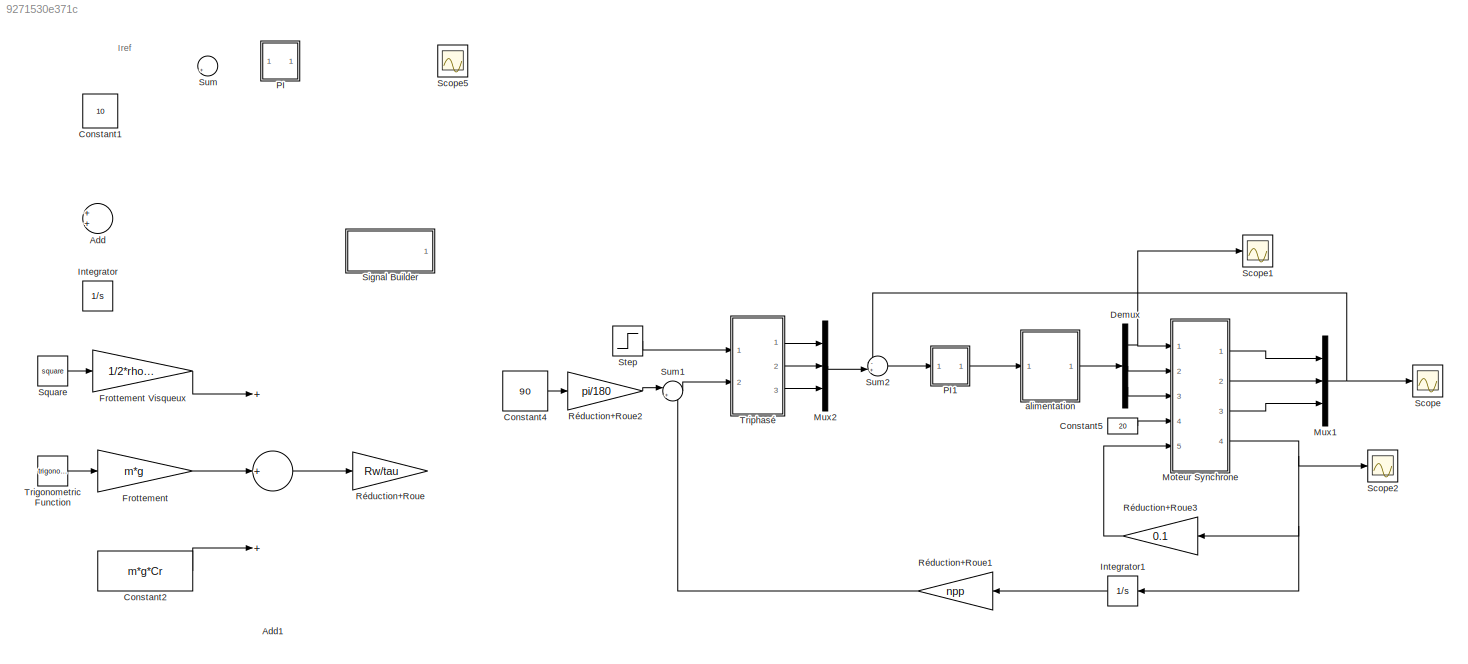
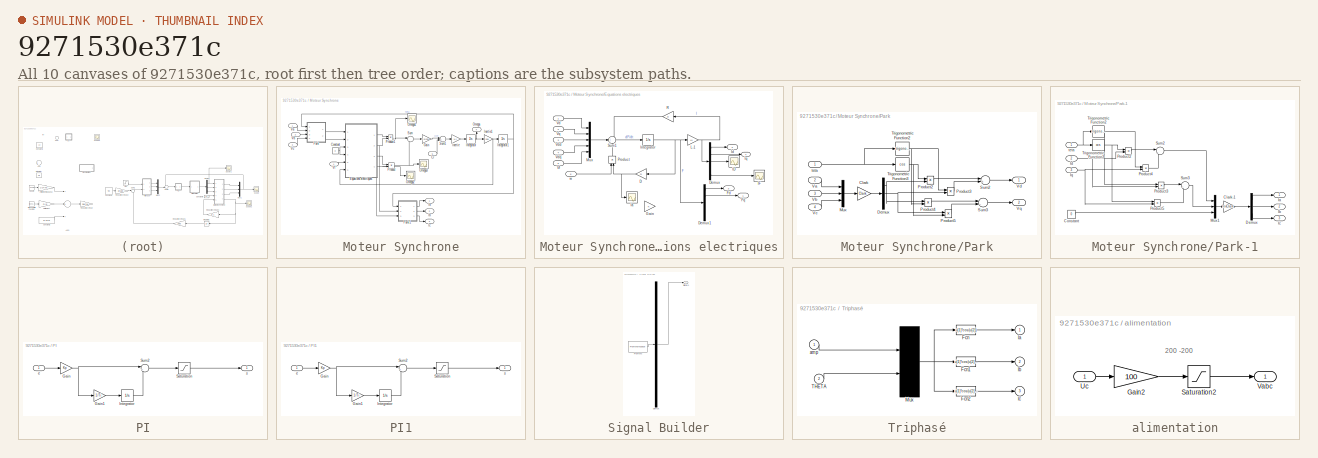
[diagram: thumbnail index - all 10 canvases of the model, root first then tree order]
MODEL slx_9271530e371c
KIND model
CONFIG AbsTol = auto
CONFIG EnableMultiTasking = on
CONFIG FixedStep = auto
CONFIG InitFcn = % Modelisation de la Machine Synchrone\n\n% Constantes\n\nRs = 0.001;\nRdd = 0.01 ;\nRdq = Rdd ;\nRf = 7 ;\nLd = 1.59e-2 ;\nLq = Ld ;\nLf = 7 ;\nLdd = 7e-4 ;\nLdq = Ldd ;\nMaf = 0.259 ;\nMadd = 2.5e-3 ;\nMadq = Madd ;\nMfdd = 6.8e-2 ; \nnpp = 2 ;\nJ = 0.1 ;\n\nw = 2*pi*50 ;\n\nOmega = w/npp ;\n\n\n% Matrices\n\n% V = [Vd Vq 0 0 Vf] ;\n\n% I = [Id Iq Idd Idq If] ;\n\n% F = [Fd Fq Fdd Fdq Ff] ;\n\nL = [ Ld			0		Madd		0			Maf ;\n    ...<+735ch>
CONFIG MaxStep = 1e-3
CONFIG MinStep = auto
CONFIG RelTol = 1e-3
CONFIG SampleTimeConstraint = Unconstrained
CONFIG Solver = ode23t
CONFIG SolverName = ode23t
CONFIG StartTime = 0.0
CONFIG StopTime = 3
BLOCK [Sum] Add
  InputSameDT = off
  OutDataTypeStr = Inherit: Inherit via internal rule
  Ports = [2, 1]
  SaturateOnIntegerOverflow = off
BLOCK [Sum] Add1
  Commented = on
  InputSameDT = off
  Inputs = +++
  OutDataTypeStr = Inherit: Inherit via internal rule
  Ports = [3, 1]
  SaturateOnIntegerOverflow = off
BLOCK [Constant] Constant1
  Value = 10
BLOCK [Constant] Constant2
  Commented = on
  Value = m*g*Cr
BLOCK [Constant] Constant4
  Value = 90
BLOCK [Constant] Constant5
  Value = 20
BLOCK [Demux] Demux
  Outputs = 3
  Ports = [1, 3]
BLOCK [Gain] Frottement 
  Commented = on
  Gain = m*g
  OutDataTypeStr = Inherit: Inherit via internal rule
  ParamDataTypeStr = Inherit: Inherit via internal rule
  SaturateOnIntegerOverflow = off
BLOCK [Gain] Frottement Visqueux
  Commented = on
  Gain = 1/2*rho*Cx*S
  OutDataTypeStr = Inherit: Inherit via internal rule
  ParamDataTypeStr = Inherit: Inherit via internal rule
  SaturateOnIntegerOverflow = off
BLOCK [Integrator] Integrator
  Ports = [1, 1]
BLOCK [Integrator] Integrator1
  Ports = [1, 1]
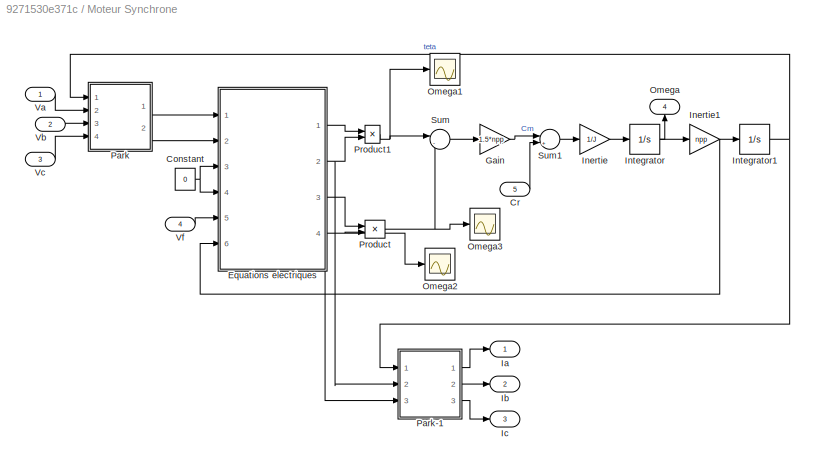
BLOCK [SubSystem] Moteur Synchrone
  Ports = [5, 4]
  RequestExecContextInheritance = off
BLOCK [Constant] Moteur Synchrone/Constant
  Value = 0
BLOCK [Inport] Moteur Synchrone/Cr
  IconDisplay = Port number
  Port = 5
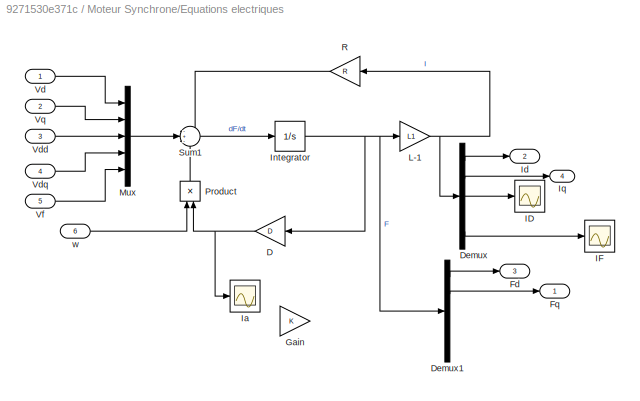
BLOCK [SubSystem] Moteur Synchrone/Equations electriques
  Ports = [6, 4]
  RequestExecContextInheritance = off
BLOCK [Gain] Moteur Synchrone/Equations electriques/D
  Gain = D
  Multiplication = Matrix(K*u)
BLOCK [Demux] Moteur Synchrone/Equations electriques/Demux
  Outputs = 5
  Ports = [1, 5]
BLOCK [Demux] Moteur Synchrone/Equations electriques/Demux1
  Outputs = 5
  Ports = [1, 5]
BLOCK [Outport] Moteur Synchrone/Equations electriques/Fd
  IconDisplay = Port number
  Port = 3
BLOCK [Outport] Moteur Synchrone/Equations electriques/Fq
  IconDisplay = Port number
BLOCK [Gain] Moteur Synchrone/Equations electriques/Gain
  OutDataTypeStr = Inherit: Inherit via internal rule
  ParamDataTypeStr = Inherit: Inherit via internal rule
  SaturateOnIntegerOverflow = off
BLOCK [Scope] Moteur Synchrone/Equations electriques/ID
  Floating = off
  NumInputPorts = 1
  Ports = [1]
  ScopeSpecificationString = C++SS(StrPVP('Location','[6, 45, 1030, 594]'),StrPVP('Open','off'),StrPVP('ZoomMode','xonly'),MxPVP('AxesTitles',54,'struct(''axes1'',''%<SignalLabel>'')'),StrPVP('YMin','-350'),StrPVP('YMax','450'),StrPVP('SaveName','ScopeData11'),StrPVP('DataFormat','StructureWithTime'),StrPVP('LimitDataPoints','off'),StrPVP('BlockParamSampleTime','0'),StrPVP('Decimation','1'),StrPVP('BlockParamSampleInput','off...<+3ch>
BLOCK [Scope] Moteur Synchrone/Equations electriques/IF
  Floating = off
  NumInputPorts = 1
  Ports = [1]
  ScopeSpecificationString = C++SS(StrPVP('Location','[6, 57, 810, 594]'),StrPVP('Open','off'),StrPVP('ZoomMode','xonly'),MxPVP('AxesTitles',54,'struct(''axes1'',''%<SignalLabel>'')'),StrPVP('YMin','-350'),StrPVP('YMax','450'),StrPVP('SaveName','ScopeData12'),StrPVP('DataFormat','StructureWithTime'),StrPVP('LimitDataPoints','off'),StrPVP('BlockParamSampleTime','0'),StrPVP('Decimation','1'),StrPVP('BlockParamSampleInput','off'...<+2ch>
BLOCK [Scope] Moteur Synchrone/Equations electriques/Ia
  Floating = off
  NumInputPorts = 1
  Ports = [1]
  ScopeSpecificationString = C++SS(StrPVP('Location','[6, 56, 1030, 771]'),StrPVP('Open','off'),StrPVP('ZoomMode','xonly'),MxPVP('AxesTitles',54,'struct(''axes1'',''%<SignalLabel>'')'),StrPVP('YMin','-350'),StrPVP('YMax','450'),StrPVP('SaveName','ScopeData10'),StrPVP('DataFormat','StructureWithTime'),StrPVP('LimitDataPoints','off'),StrPVP('BlockParamSampleTime','0'),StrPVP('Decimation','1'),StrPVP('BlockParamSampleInput','off...<+3ch>
BLOCK [Outport] Moteur Synchrone/Equations electriques/Id
  IconDisplay = Port number
  Port = 2
BLOCK [Integrator] Moteur Synchrone/Equations electriques/Integrator
  Ports = [1, 1]
BLOCK [Outport] Moteur Synchrone/Equations electriques/Iq
  IconDisplay = Port number
  Port = 4
BLOCK [Gain] Moteur Synchrone/Equations electriques/L-1
  Gain = L1
  Multiplication = Matrix(K*u)
BLOCK [Mux] Moteur Synchrone/Equations electriques/Mux
  DisplayOption = bar
  Inputs = 5
  Ports = [5, 1]
BLOCK [Product] Moteur Synchrone/Equations electriques/Product
  Ports = [2, 1]
  RndMeth = Floor
BLOCK [Gain] Moteur Synchrone/Equations electriques/R
  Gain = R
  Multiplication = Matrix(K*u)
BLOCK [Sum] Moteur Synchrone/Equations electriques/Sum1
  IconShape = round
  Inputs = -+-
  Ports = [3, 1]
BLOCK [Inport] Moteur Synchrone/Equations electriques/Vd
  IconDisplay = Port number
BLOCK [Inport] Moteur Synchrone/Equations electriques/Vdd
  IconDisplay = Port number
  Port = 3
BLOCK [Inport] Moteur Synchrone/Equations electriques/Vdq
  IconDisplay = Port number
  Port = 4
BLOCK [Inport] Moteur Synchrone/Equations electriques/Vf
  IconDisplay = Port number
  Port = 5
BLOCK [Inport] Moteur Synchrone/Equations electriques/Vq
  IconDisplay = Port number
  Port = 2
BLOCK [Inport] Moteur Synchrone/Equations electriques/w
  IconDisplay = Port number
  Port = 6
BLOCK [Gain] Moteur Synchrone/Gain
  Gain = 1.5*npp
BLOCK [Outport] Moteur Synchrone/Ia
  IconDisplay = Port number
BLOCK [Outport] Moteur Synchrone/Ib
  IconDisplay = Port number
  Port = 2
BLOCK [Outport] Moteur Synchrone/Ic
  IconDisplay = Port number
  Port = 3
BLOCK [Gain] Moteur Synchrone/Inertie
  Gain = 1/J
BLOCK [Gain] Moteur Synchrone/Inertie1
  Gain = npp
BLOCK [Integrator] Moteur Synchrone/Integrator
  Ports = [1, 1]
BLOCK [Integrator] Moteur Synchrone/Integrator1
  Ports = [1, 1]
BLOCK [Outport] Moteur Synchrone/Omega
  IconDisplay = Port number
  Port = 4
BLOCK [Scope] Moteur Synchrone/Omega1
  Floating = off
  NumInputPorts = 1
  Ports = [1]
  ScopeSpecificationString = C++SS(StrPVP('Location','[130, 110, 950, 615]'),StrPVP('Open','off'),StrPVP('ZoomMode','xonly'),MxPVP('AxesTitles',54,'struct(''axes1'',''%<SignalLabel>'')'),StrPVP('YMin','-10'),StrPVP('YMax','170'),StrPVP('SaveName','ScopeData14'),StrPVP('DataFormat','StructureWithTime'),StrPVP('LimitDataPoints','off'),StrPVP('BlockParamSampleTime','0'),StrPVP('Decimation','1'),StrPVP('BlockParamSampleInput','of...<+4ch>
BLOCK [Scope] Moteur Synchrone/Omega2
  Floating = off
  NumInputPorts = 1
  Ports = [1]
  ScopeSpecificationString = C++SS(StrPVP('Location','[130, 110, 950, 615]'),StrPVP('Open','off'),StrPVP('ZoomMode','xonly'),MxPVP('AxesTitles',54,'struct(''axes1'',''%<SignalLabel>'')'),StrPVP('YMin','-10'),StrPVP('YMax','170'),StrPVP('SaveName','ScopeData15'),StrPVP('DataFormat','StructureWithTime'),StrPVP('LimitDataPoints','off'),StrPVP('BlockParamSampleTime','0'),StrPVP('Decimation','1'),StrPVP('BlockParamSampleInput','of...<+4ch>
BLOCK [Scope] Moteur Synchrone/Omega3
  Floating = off
  NumInputPorts = 1
  Ports = [1]
  ScopeSpecificationString = C++SS(StrPVP('Location','[130, 110, 950, 615]'),StrPVP('Open','off'),StrPVP('ZoomMode','xonly'),MxPVP('AxesTitles',54,'struct(''axes1'',''%<SignalLabel>'')'),StrPVP('YMin','-10'),StrPVP('YMax','170'),StrPVP('SaveName','ScopeData13'),StrPVP('DataFormat','StructureWithTime'),StrPVP('LimitDataPoints','off'),StrPVP('BlockParamSampleTime','0'),StrPVP('Decimation','1'),StrPVP('BlockParamSampleInput','of...<+4ch>
BLOCK [SubSystem] Moteur Synchrone/Park
  Ports = [4, 2]
  RequestExecContextInheritance = off
BLOCK [SubSystem] Moteur Synchrone/Park-1
  Ports = [3, 3]
  RequestExecContextInheritance = off
BLOCK [Gain] Moteur Synchrone/Park-1/Clark-1
  Gain = InvClark
  Multiplication = Matrix(K*u)
BLOCK [Constant] Moteur Synchrone/Park-1/Constant
  Value = 0
BLOCK [Demux] Moteur Synchrone/Park-1/Demux
  Outputs = 3
  Ports = [1, 3]
BLOCK [Outport] Moteur Synchrone/Park-1/Ia
  IconDisplay = Port number
BLOCK [Outport] Moteur Synchrone/Park-1/Ib
  IconDisplay = Port number
  Port = 2
BLOCK [Outport] Moteur Synchrone/Park-1/Ic
  IconDisplay = Port number
  Port = 3
BLOCK [Inport] Moteur Synchrone/Park-1/Id
  IconDisplay = Port number
  Port = 2
BLOCK [Inport] Moteur Synchrone/Park-1/Iq
  IconDisplay = Port number
  Port = 3
BLOCK [Mux] Moteur Synchrone/Park-1/Mux1
  DisplayOption = bar
  Inputs = 3
  Ports = [3, 1]
BLOCK [Product] Moteur Synchrone/Park-1/Product2
  Ports = [2, 1]
  RndMeth = Floor
BLOCK [Product] Moteur Synchrone/Park-1/Product3
  Ports = [2, 1]
  RndMeth = Floor
BLOCK [Product] Moteur Synchrone/Park-1/Product4
  Ports = [2, 1]
  RndMeth = Floor
BLOCK [Product] Moteur Synchrone/Park-1/Product5
  Ports = [2, 1]
  RndMeth = Floor
BLOCK [Sum] Moteur Synchrone/Park-1/Sum2
  IconShape = round
  Inputs = |+-
  Ports = [2, 1]
BLOCK [Sum] Moteur Synchrone/Park-1/Sum3
  IconShape = round
  Inputs = |++
  Ports = [2, 1]
BLOCK [Trigonometry] Moteur Synchrone/Park-1/Trigonometric Function2
  Ports = [1, 1]
BLOCK [Trigonometry] Moteur Synchrone/Park-1/Trigonometric Function3
  Operator = cos
  Ports = [1, 1]
BLOCK [Inport] Moteur Synchrone/Park-1/teta
  IconDisplay = Port number
BLOCK [Gain] Moteur Synchrone/Park/Clark
  Gain = Clark
  Multiplication = Matrix(K*u)
BLOCK [Demux] Moteur Synchrone/Park/Demux
  Outputs = 3
  Ports = [1, 3]
BLOCK [Mux] Moteur Synchrone/Park/Mux
  DisplayOption = bar
  Inputs = 3
  Ports = [3, 1]
BLOCK [Product] Moteur Synchrone/Park/Product2
  Ports = [2, 1]
  RndMeth = Floor
BLOCK [Product] Moteur Synchrone/Park/Product3
  Ports = [2, 1]
  RndMeth = Floor
BLOCK [Product] Moteur Synchrone/Park/Product4
  Ports = [2, 1]
  RndMeth = Floor
BLOCK [Product] Moteur Synchrone/Park/Product5
  Ports = [2, 1]
  RndMeth = Floor
BLOCK [Sum] Moteur Synchrone/Park/Sum2
  IconShape = round
  Inputs = |++
  Ports = [2, 1]
BLOCK [Sum] Moteur Synchrone/Park/Sum3
  IconShape = round
  Inputs = |-+
  Ports = [2, 1]
BLOCK [Trigonometry] Moteur Synchrone/Park/Trigonometric Function2
  Ports = [1, 1]
BLOCK [Trigonometry] Moteur Synchrone/Park/Trigonometric Function3
  Operator = cos
  Ports = [1, 1]
BLOCK [Inport] Moteur Synchrone/Park/Va
  IconDisplay = Port number
  Port = 2
BLOCK [Inport] Moteur Synchrone/Park/Vb
  IconDisplay = Port number
  Port = 3
BLOCK [Inport] Moteur Synchrone/Park/Vc
  IconDisplay = Port number
  Port = 4
BLOCK [Outport] Moteur Synchrone/Park/Vd
  IconDisplay = Port number
BLOCK [Outport] Moteur Synchrone/Park/Vq
  IconDisplay = Port number
  Port = 2
BLOCK [Inport] Moteur Synchrone/Park/teta
  IconDisplay = Port number
BLOCK [Product] Moteur Synchrone/Product
  Ports = [2, 1]
  RndMeth = Floor
BLOCK [Product] Moteur Synchrone/Product1
  Ports = [2, 1]
  RndMeth = Floor
BLOCK [Sum] Moteur Synchrone/Sum
  IconShape = round
  Inputs = |-+
  Ports = [2, 1]
BLOCK [Sum] Moteur Synchrone/Sum1
  IconShape = round
  Inputs = |+-
  Ports = [2, 1]
BLOCK [Inport] Moteur Synchrone/Va
  IconDisplay = Port number
BLOCK [Inport] Moteur Synchrone/Vb
  IconDisplay = Port number
  Port = 2
BLOCK [Inport] Moteur Synchrone/Vc
  IconDisplay = Port number
  Port = 3
BLOCK [Inport] Moteur Synchrone/Vf
  IconDisplay = Port number
  Port = 4
BLOCK [Mux] Mux1
  DisplayOption = bar
  Inputs = 3
  Ports = [3, 1]
BLOCK [Mux] Mux2
  DisplayOption = bar
  Inputs = 3
  Ports = [3, 1]
BLOCK [SubSystem] PI
  Ports = [1, 1]
  RequestExecContextInheritance = off
BLOCK [Gain] PI/Gain
  Gain = Kp
BLOCK [Gain] PI/Gain1
  Gain = 1/Ti
BLOCK [Integrator] PI/Integrator
  Ports = [1, 1]
BLOCK [Saturate] PI/Saturation
  InputPortMap = u0
  LowerLimit = -sat
  Ports = [1, 1]
  UpperLimit = sat
BLOCK [Sum] PI/Sum2
  IconShape = round
  Inputs = |++
  Ports = [2, 1]
BLOCK [Inport] PI/e
  IconDisplay = Port number
BLOCK [Outport] PI/s
  IconDisplay = Port number
BLOCK [SubSystem] PI1
  Ports = [1, 1]
  RequestExecContextInheritance = off
BLOCK [Gain] PI1/Gain
  Gain = Kp
BLOCK [Gain] PI1/Gain1
  Gain = 1/Ti
BLOCK [Integrator] PI1/Integrator
  Ports = [1, 1]
BLOCK [Saturate] PI1/Saturation
  InputPortMap = u0
  LowerLimit = -sat
  Ports = [1, 1]
  UpperLimit = sat
BLOCK [Sum] PI1/Sum2
  IconShape = round
  Inputs = |++
  Ports = [2, 1]
BLOCK [Inport] PI1/e
  IconDisplay = Port number
BLOCK [Outport] PI1/s
  IconDisplay = Port number
BLOCK [Gain] Réduction+Roue
  Commented = on
  Gain = Rw/tau
  OutDataTypeStr = Inherit: Inherit via internal rule
  ParamDataTypeStr = Inherit: Inherit via internal rule
  SaturateOnIntegerOverflow = off
BLOCK [Gain] Réduction+Roue1
  Gain = npp
  OutDataTypeStr = Inherit: Inherit via internal rule
  ParamDataTypeStr = Inherit: Inherit via internal rule
  SaturateOnIntegerOverflow = off
BLOCK [Gain] Réduction+Roue2
  Gain = pi/180
  OutDataTypeStr = Inherit: Inherit via internal rule
  ParamDataTypeStr = Inherit: Inherit via internal rule
  SaturateOnIntegerOverflow = off
BLOCK [Gain] Réduction+Roue3
  Gain = 0.1
  OutDataTypeStr = Inherit: Inherit via internal rule
  ParamDataTypeStr = Inherit: Inherit via internal rule
  SaturateOnIntegerOverflow = off
BLOCK [Scope] Scope
  Floating = off
  NumInputPorts = 1
  Ports = [1]
  ScopeSpecificationString = Simulink.scopes.TimeScopeBlockCfg('CurrentConfiguration', extmgr.ConfigurationSet(extmgr.Configuration('Core','General UI',true,'FigureColor',[0.941176470588235 0.941176470588235 0.941176470588235]),extmgr.Configuration('Core','Source UI',true),extmgr.Configuration('Sources','WiredSimulink',true,'DataLoggingVariableName','ScopeData1'),extmgr.Configuration('Visuals','Time Domain',true,'SerializedDi...<+2218ch>
BLOCK [Scope] Scope1
  Floating = off
  NumInputPorts = 1
  Ports = [1]
  ScopeSpecificationString = Simulink.scopes.TimeScopeBlockCfg('CurrentConfiguration', extmgr.ConfigurationSet(extmgr.Configuration('Core','General UI',true,'FigureColor',[0.941176470588235 0.941176470588235 0.941176470588235]),extmgr.Configuration('Core','Source UI',true),extmgr.Configuration('Sources','WiredSimulink',true,'DataLoggingVariableName','ScopeData2'),extmgr.Configuration('Visuals','Time Domain',true,'SerializedDi...<+2298ch>
BLOCK [Scope] Scope2
  Floating = off
  NumInputPorts = 1
  Ports = [1]
  ScopeSpecificationString = Simulink.scopes.TimeScopeBlockCfg('CurrentConfiguration', extmgr.ConfigurationSet(extmgr.Configuration('Core','General UI',true,'FigureColor',[0.941176470588235 0.941176470588235 0.941176470588235]),extmgr.Configuration('Core','Source UI',true),extmgr.Configuration('Sources','WiredSimulink',true,'DataLoggingVariableName','ScopeData3'),extmgr.Configuration('Visuals','Time Domain',true,'SerializedDi...<+2110ch>
BLOCK [Scope] Scope5
  Floating = off
  NumInputPorts = 1
  Ports = [1]
  ScopeSpecificationString = Simulink.scopes.TimeScopeBlockCfg('CurrentConfiguration', extmgr.ConfigurationSet(extmgr.Configuration('Core','General UI',true,'FigureColor',[1 1 1]),extmgr.Configuration('Core','Source UI',true),extmgr.Configuration('Sources','WiredSimulink',true,'DataLoggingVariableName','ScopeData5','DataLoggingSaveFormat','StructureWithTime','DataLoggingDecimation','1','DataLoggingDecimateData',true),extmgr.C...<+1814ch>
BLOCK [SubSystem] Signal Builder
  ClipboardFcn = sigbuilder_block('clipboard');
  CloseFcn = sigbuilder_block('close');
  ContinueFcn = sigbuilder_block('continue');
  CopyFcn = sigbuilder_block('copy');
  DeleteFcn = sigbuilder_block('delete');
  LoadFcn = sigbuilder_block('load');
  MaskHideContents = on
  ModelCloseFcn = sigbuilder_block('modelClose');
  NameChangeFcn = sigbuilder_block('namechange');
  OpenFcn = sigbuilder_block('open',[406 167 550 400 ]);
  PauseFcn = sigbuilder_block('pause');
  Ports = [0, 1]
  PreSaveFcn = sigbuilder_block('preSave');
  RequestExecContextInheritance = off
  StartFcn = sigbuilder_block('start');
  StopFcn = sigbuilder_block('stop');
  Tag = STV Subsys
BLOCK [Demux] Signal Builder/Demux
  Outputs = 1
  Ports = [1, 1]
  Tag = STV Demux
BLOCK [FromWorkspace] Signal Builder/FromWs
  SampleTime = 0
  Tag = STV FromWs
  VariableName = tuvar
  ZeroCross = on
BLOCK [Outport] Signal Builder/Signal 1
  IconDisplay = Port number
  Tag = STV Outport
BLOCK [Math] Square
  Commented = on
  Operator = square
  Ports = [1, 1]
  SignedPower = off
BLOCK [Step] Step
  Before = 10
  SampleTime = 0
  Time = 1.2
BLOCK [Sum] Sum
  IconShape = round
  InputSameDT = off
  Inputs = |+-
  OutDataTypeStr = Inherit: Inherit via internal rule
  Ports = [2, 1]
BLOCK [Sum] Sum1
  IconShape = round
  InputSameDT = off
  Inputs = |++
  OutDataTypeStr = Inherit: Inherit via internal rule
  Ports = [2, 1]
BLOCK [Sum] Sum2
  IconShape = round
  InputSameDT = off
  Inputs = -+|
  OutDataTypeStr = Inherit: Inherit via internal rule
  Ports = [2, 1]
BLOCK [Trigonometry] Trigonometric Function
  Commented = on
  Ports = [1, 1]
BLOCK [SubSystem] Triphasé
  Ports = [2, 3]
  RequestExecContextInheritance = off
BLOCK [Fcn] Triphasé/Fcn
  Expr = u[1]*cos(u[2])
BLOCK [Fcn] Triphasé/Fcn1
  Expr = u[1]*cos(u[2]-2*pi/3)
BLOCK [Fcn] Triphasé/Fcn2
  Expr = u[1]*cos(u[2]-4*pi/3)
BLOCK [Outport] Triphasé/Ia
  IconDisplay = Port number
  InitialOutput = 0
BLOCK [Outport] Triphasé/Ib
  IconDisplay = Port number
  InitialOutput = 0
  Port = 2
BLOCK [Outport] Triphasé/Ic
  IconDisplay = Port number
  InitialOutput = 0
  Port = 3
BLOCK [Mux] Triphasé/Mux
  Inputs = 2
  Ports = [2, 1]
BLOCK [Inport] Triphasé/THETA
  IconDisplay = Port number
  Port = 2
BLOCK [Inport] Triphasé/amp
  IconDisplay = Port number
BLOCK [SubSystem] alimentation
  Ports = [1, 1]
  RequestExecContextInheritance = off
BLOCK [Gain] alimentation/Gain2
  Gain = 100
BLOCK [Saturate] alimentation/Saturation2
  InputPortMap = u0
  LowerLimit = -200
  Ports = [1, 1]
  UpperLimit = 200
BLOCK [Inport] alimentation/Uc
  IconDisplay = Port number
BLOCK [Outport] alimentation/Vabc
  IconDisplay = Port number
ANNOTATION (root): Iref
ANNOTATION alimentation: 200 -200
LINE Add1:1 -> Réduction+Roue:1
LINE Constant2:1 -> Add1:3
LINE Constant4:1 -> Réduction+Roue2:1
LINE Constant5:1 -> Moteur Synchrone:4
NET Demux:1 -> Moteur Synchrone:1, Scope1:1
LINE Demux:2 -> Moteur Synchrone:2
LINE Demux:3 -> Moteur Synchrone:3
LINE Frottement :1 -> Add1:2
LINE Frottement Visqueux:1 -> Add1:1
LINE Integrator1:1 -> Réduction+Roue1:1
NET Moteur Synchrone/Constant:1 -> Moteur Synchrone/Equations electriques:3, Moteur Synchrone/Equations electriques:4
LINE Moteur Synchrone/Cr:1 -> Moteur Synchrone/Sum1:2
NET Moteur Synchrone/Equations electriques/D:1 -> Moteur Synchrone/Equations electriques/Ia:1, Moteur Synchrone/Equations electriques/Product:2
LINE Moteur Synchrone/Equations electriques/Demux1:1 -> Moteur Synchrone/Equations electriques/Fd:1
LINE Moteur Synchrone/Equations electriques/Demux1:2 -> Moteur Synchrone/Equations electriques/Fq:1
LINE Moteur Synchrone/Equations electriques/Demux:1 -> Moteur Synchrone/Equations electriques/Id:1
LINE Moteur Synchrone/Equations electriques/Demux:2 -> Moteur Synchrone/Equations electriques/Iq:1
LINE Moteur Synchrone/Equations electriques/Demux:3 -> Moteur Synchrone/Equations electriques/ID:1
LINE Moteur Synchrone/Equations electriques/Demux:5 -> Moteur Synchrone/Equations electriques/IF:1
NET Moteur Synchrone/Equations electriques/Integrator:1 -> Moteur Synchrone/Equations electriques/D:1, Moteur Synchrone/Equations electriques/Demux1:1, Moteur Synchrone/Equations electriques/L-1:1
NET Moteur Synchrone/Equations electriques/L-1:1 -> Moteur Synchrone/Equations electriques/Demux:1, Moteur Synchrone/Equations electriques/R:1
LINE Moteur Synchrone/Equations electriques/Mux:1 -> Moteur Synchrone/Equations electriques/Sum1:2
LINE Moteur Synchrone/Equations electriques/Product:1 -> Moteur Synchrone/Equations electriques/Sum1:3
LINE Moteur Synchrone/Equations electriques/R:1 -> Moteur Synchrone/Equations electriques/Sum1:1
LINE Moteur Synchrone/Equations electriques/Sum1:1 -> Moteur Synchrone/Equations electriques/Integrator:1
LINE Moteur Synchrone/Equations electriques/Vd:1 -> Moteur Synchrone/Equations electriques/Mux:1
LINE Moteur Synchrone/Equations electriques/Vdd:1 -> Moteur Synchrone/Equations electriques/Mux:3
LINE Moteur Synchrone/Equations electriques/Vdq:1 -> Moteur Synchrone/Equations electriques/Mux:4
LINE Moteur Synchrone/Equations electriques/Vf:1 -> Moteur Synchrone/Equations electriques/Mux:5
LINE Moteur Synchrone/Equations electriques/Vq:1 -> Moteur Synchrone/Equations electriques/Mux:2
LINE Moteur Synchrone/Equations electriques/w:1 -> Moteur Synchrone/Equations electriques/Product:1
LINE Moteur Synchrone/Equations electriques:1 -> Moteur Synchrone/Product1:1
NET Moteur Synchrone/Equations electriques:2 -> Moteur Synchrone/Park-1:2, Moteur Synchrone/Product1:2
LINE Moteur Synchrone/Equations electriques:3 -> Moteur Synchrone/Product:1
NET Moteur Synchrone/Equations electriques:4 -> Moteur Synchrone/Omega2:1, Moteur Synchrone/Park-1:3, Moteur Synchrone/Product:2
LINE Moteur Synchrone/Gain:1 -> Moteur Synchrone/Sum1:1
NET Moteur Synchrone/Inertie1:1 -> Moteur Synchrone/Equations electriques:6, Moteur Synchrone/Integrator1:1
LINE Moteur Synchrone/Inertie:1 -> Moteur Synchrone/Integrator:1
NET Moteur Synchrone/Integrator1:1 -> Moteur Synchrone/Park-1:1, Moteur Synchrone/Park:1
NET Moteur Synchrone/Integrator:1 -> Moteur Synchrone/Inertie1:1, Moteur Synchrone/Omega:1
LINE Moteur Synchrone/Park-1/Clark-1:1 -> Moteur Synchrone/Park-1/Demux:1
LINE Moteur Synchrone/Park-1/Constant:1 -> Moteur Synchrone/Park-1/Mux1:3
LINE Moteur Synchrone/Park-1/Demux:1 -> Moteur Synchrone/Park-1/Ia:1
LINE Moteur Synchrone/Park-1/Demux:2 -> Moteur Synchrone/Park-1/Ib:1
LINE Moteur Synchrone/Park-1/Demux:3 -> Moteur Synchrone/Park-1/Ic:1
NET Moteur Synchrone/Park-1/Id:1 -> Moteur Synchrone/Park-1/Product2:2, Moteur Synchrone/Park-1/Product3:2
NET Moteur Synchrone/Park-1/Iq:1 -> Moteur Synchrone/Park-1/Product4:2, Moteur Synchrone/Park-1/Product5:2
LINE Moteur Synchrone/Park-1/Mux1:1 -> Moteur Synchrone/Park-1/Clark-1:1
LINE Moteur Synchrone/Park-1/Product2:1 -> Moteur Synchrone/Park-1/Sum2:1
LINE Moteur Synchrone/Park-1/Product3:1 -> Moteur Synchrone/Park-1/Sum3:1
LINE Moteur Synchrone/Park-1/Product4:1 -> Moteur Synchrone/Park-1/Sum2:2
LINE Moteur Synchrone/Park-1/Product5:1 -> Moteur Synchrone/Park-1/Sum3:2
LINE Moteur Synchrone/Park-1/Sum2:1 -> Moteur Synchrone/Park-1/Mux1:1
LINE Moteur Synchrone/Park-1/Sum3:1 -> Moteur Synchrone/Park-1/Mux1:2
NET Moteur Synchrone/Park-1/Trigonometric Function2:1 -> Moteur Synchrone/Park-1/Product3:1, Moteur Synchrone/Park-1/Product4:1
NET Moteur Synchrone/Park-1/Trigonometric Function3:1 -> Moteur Synchrone/Park-1/Product2:1, Moteur Synchrone/Park-1/Product5:1
NET Moteur Synchrone/Park-1/teta:1 -> Moteur Synchrone/Park-1/Trigonometric Function2:1, Moteur Synchrone/Park-1/Trigonometric Function3:1
LINE Moteur Synchrone/Park-1:1 -> Moteur Synchrone/Ia:1
LINE Moteur Synchrone/Park-1:2 -> Moteur Synchrone/Ib:1
LINE Moteur Synchrone/Park-1:3 -> Moteur Synchrone/Ic:1
LINE Moteur Synchrone/Park/Clark:1 -> Moteur Synchrone/Park/Demux:1
NET Moteur Synchrone/Park/Demux:1 -> Moteur Synchrone/Park/Product2:2, Moteur Synchrone/Park/Product4:1
NET Moteur Synchrone/Park/Demux:2 -> Moteur Synchrone/Park/Product3:2, Moteur Synchrone/Park/Product5:1
LINE Moteur Synchrone/Park/Mux:1 -> Moteur Synchrone/Park/Clark:1
LINE Moteur Synchrone/Park/Product2:1 -> Moteur Synchrone/Park/Sum2:1
LINE Moteur Synchrone/Park/Product3:1 -> Moteur Synchrone/Park/Sum2:2
LINE Moteur Synchrone/Park/Product4:1 -> Moteur Synchrone/Park/Sum3:1
LINE Moteur Synchrone/Park/Product5:1 -> Moteur Synchrone/Park/Sum3:2
LINE Moteur Synchrone/Park/Sum2:1 -> Moteur Synchrone/Park/Vd:1
LINE Moteur Synchrone/Park/Sum3:1 -> Moteur Synchrone/Park/Vq:1
NET Moteur Synchrone/Park/Trigonometric Function2:1 -> Moteur Synchrone/Park/Product3:1, Moteur Synchrone/Park/Product4:2
NET Moteur Synchrone/Park/Trigonometric Function3:1 -> Moteur Synchrone/Park/Product2:1, Moteur Synchrone/Park/Product5:2
LINE Moteur Synchrone/Park/Va:1 -> Moteur Synchrone/Park/Mux:1
LINE Moteur Synchrone/Park/Vb:1 -> Moteur Synchrone/Park/Mux:2
LINE Moteur Synchrone/Park/Vc:1 -> Moteur Synchrone/Park/Mux:3
NET Moteur Synchrone/Park/teta:1 -> Moteur Synchrone/Park/Trigonometric Function2:1, Moteur Synchrone/Park/Trigonometric Function3:1
LINE Moteur Synchrone/Park:1 -> Moteur Synchrone/Equations electriques:1
LINE Moteur Synchrone/Park:2 -> Moteur Synchrone/Equations electriques:2
NET Moteur Synchrone/Product1:1 -> Moteur Synchrone/Omega1:1, Moteur Synchrone/Sum:1
NET Moteur Synchrone/Product:1 -> Moteur Synchrone/Omega3:1, Moteur Synchrone/Sum:2
LINE Moteur Synchrone/Sum1:1 -> Moteur Synchrone/Inertie:1
LINE Moteur Synchrone/Sum:1 -> Moteur Synchrone/Gain:1
LINE Moteur Synchrone/Va:1 -> Moteur Synchrone/Park:2
LINE Moteur Synchrone/Vb:1 -> Moteur Synchrone/Park:3
LINE Moteur Synchrone/Vc:1 -> Moteur Synchrone/Park:4
LINE Moteur Synchrone/Vf:1 -> Moteur Synchrone/Equations electriques:5
LINE Moteur Synchrone:1 -> Mux1:1
LINE Moteur Synchrone:2 -> Mux1:2
LINE Moteur Synchrone:3 -> Mux1:3
NET Moteur Synchrone:4 -> Integrator1:1, Réduction+Roue3:1, Scope2:1
NET Mux1:1 -> Scope:1, Sum2:1
LINE Mux2:1 -> Sum2:2
LINE PI/Gain1:1 -> PI/Integrator:1
NET PI/Gain:1 -> PI/Gain1:1, PI/Sum2:1
LINE PI/Integrator:1 -> PI/Sum2:2
LINE PI/Saturation:1 -> PI/s:1
LINE PI/Sum2:1 -> PI/Saturation:1
LINE PI/e:1 -> PI/Gain:1
LINE PI1/Gain1:1 -> PI1/Integrator:1
NET PI1/Gain:1 -> PI1/Gain1:1, PI1/Sum2:1
LINE PI1/Integrator:1 -> PI1/Sum2:2
LINE PI1/Saturation:1 -> PI1/s:1
LINE PI1/Sum2:1 -> PI1/Saturation:1
LINE PI1/e:1 -> PI1/Gain:1
LINE PI1:1 -> alimentation:1
LINE Réduction+Roue1:1 -> Sum1:2
LINE Réduction+Roue2:1 -> Sum1:1
LINE Réduction+Roue3:1 -> Moteur Synchrone:5
LINE Square:1 -> Frottement Visqueux:1
LINE Step:1 -> Triphasé:1
LINE Sum1:1 -> Triphasé:2
LINE Sum2:1 -> PI1:1
LINE Trigonometric Function:1 -> Frottement :1
LINE Triphasé/Fcn1:1 -> Triphasé/Ib:1
LINE Triphasé/Fcn2:1 -> Triphasé/Ic:1
LINE Triphasé/Fcn:1 -> Triphasé/Ia:1
NET Triphasé/Mux:1 -> Triphasé/Fcn1:1, Triphasé/Fcn2:1, Triphasé/Fcn:1
LINE Triphasé/THETA:1 -> Triphasé/Mux:2
LINE Triphasé/amp:1 -> Triphasé/Mux:1
LINE Triphasé:1 -> Mux2:1
LINE Triphasé:2 -> Mux2:2
LINE Triphasé:3 -> Mux2:3
LINE alimentation/Gain2:1 -> alimentation/Saturation2:1
LINE alimentation/Saturation2:1 -> alimentation/Vabc:1
LINE alimentation/Uc:1 -> alimentation/Gain2:1
LINE alimentation:1 -> Demux:1
note: NET lines group one-source signal fan-out (src -> all destinations, sorted); 1:1 wires keep LINE
